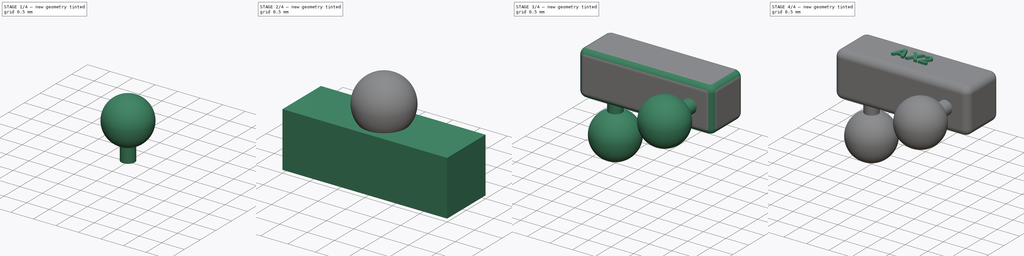
[diagram: build sequence overview — one tinted view per stage of 4, left to right]
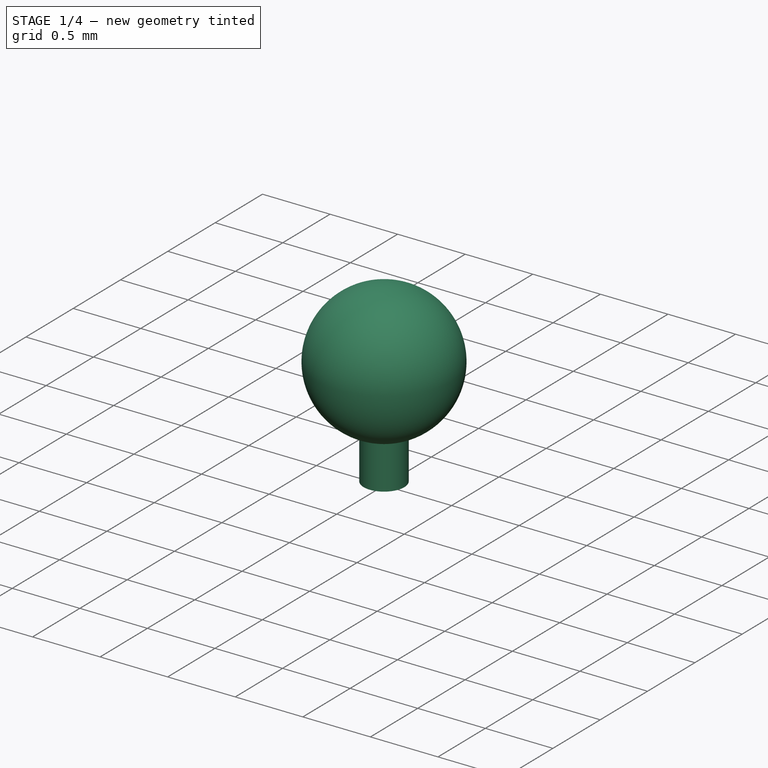
[diagram: stage 1 of 4 — iso view after this stage's code; geometry added in this stage tinted green]
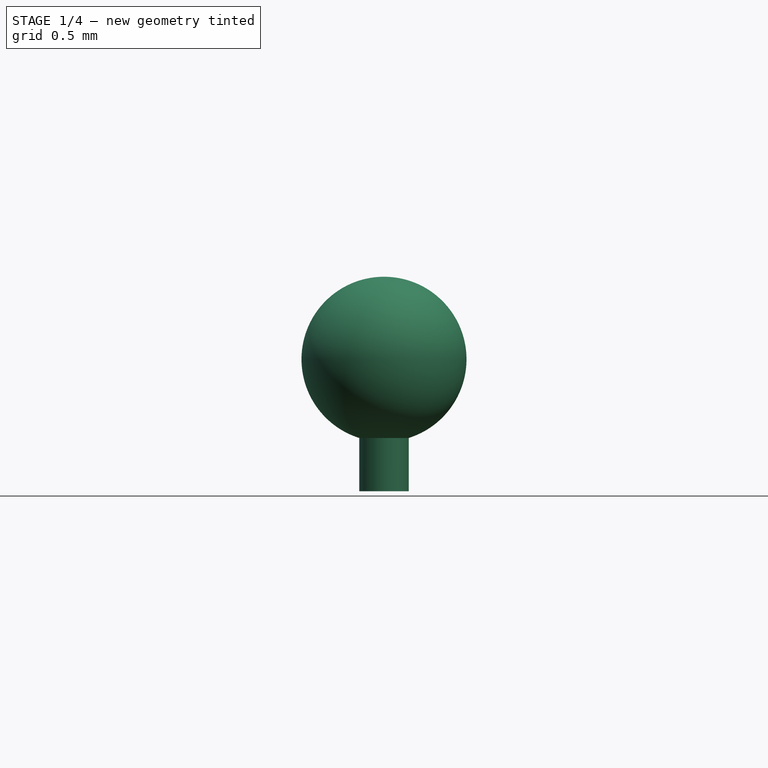
[diagram: stage 1 of 4 — front view after this stage's code; geometry added in this stage tinted green]
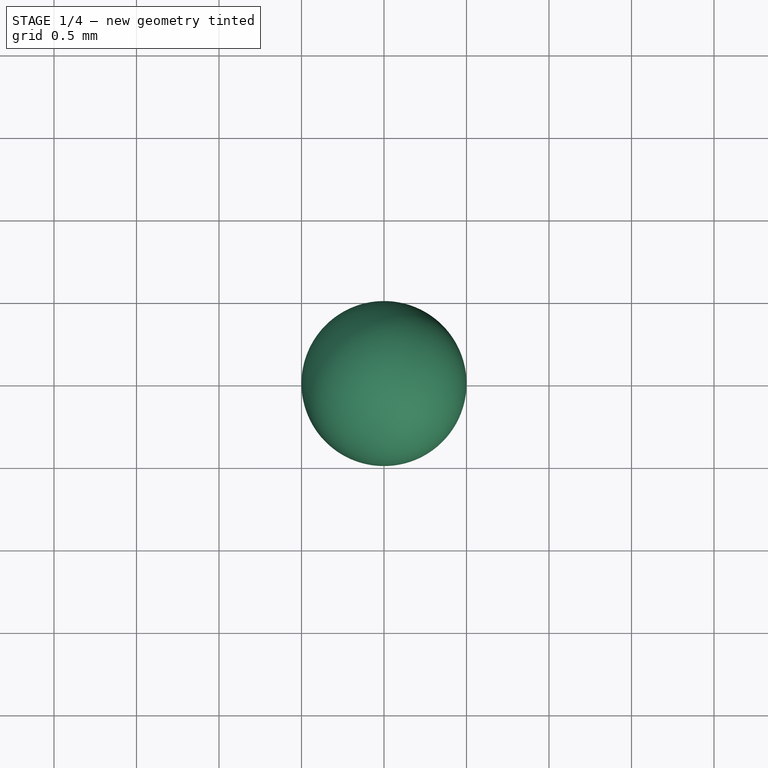
[diagram: stage 1 of 4 — top view after this stage's code; geometry added in this stage tinted green]
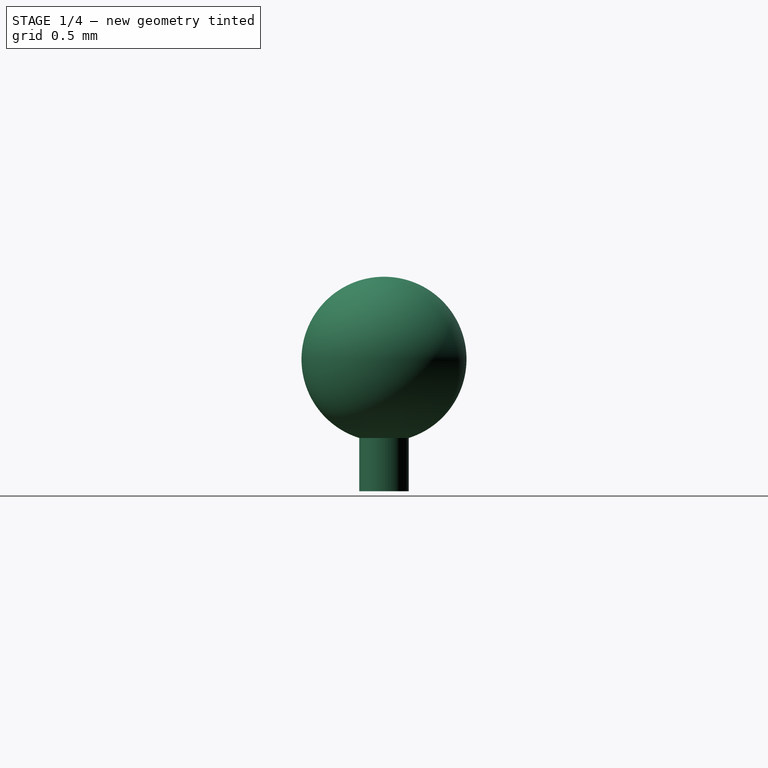
[diagram: stage 1 of 4 — right view after this stage's code; geometry added in this stage tinted green]
FCSTD DOCUMENT  (FreeCAD 0.20R29177 (Git))
Label: ax2
License: All rights reserved
LicenseURL: http://en.wikipedia.org/wiki/All_rights_reserved
objects: PartDesign::Body×4, Sketcher::SketchObject×3, PartDesign::Pad×3, PartDesign::Fillet×2, PartDesign::FeatureBase×2, Spreadsheet::Sheet×1, PartDesign::Plane×1, PartDesign::Line×1, PartDesign::Revolution×1, Part::MultiFuse×1, Part::Part2DObjectPython×1, PartDesign::Point×1
note: 26 computed .brp shape members not serialized (recipe doc carries the construction recipe); baked Part::Feature solids carry a one-line shape summary decoded from their .brp

FEATURE [PartDesign::Body] Body  label="BeamBody"
  Group = -> [Sketch,Pad,Fillet]
  Origin = -> Origin
  Tip = -> Fillet
FEATURE [Sketcher::SketchObject] Sketch001  label="ConnSketch"
  FullyConstrained = true
  MapMode = 5
  Support = -> [XY_Plane001]
  expr: Constraints[1] = Spreadsheet.ConnDiameter
  sketch-geometry (1):
    g0: Circle CenterX=0 CenterY=0 CenterZ=0 NormalX=0 NormalY=0 NormalZ=1 AngleXU=0 Radius=0.15
  constraints (2):
    c: Coincident(g0,g-1)
    c: Diameter(g0) = 0.3
FEATURE [PartDesign::Pad] Pad001  label="ConnPad"
  Direction = (0,0,1)
  Length = 0.8
  Length2 = 10
  Profile = -> Sketch001
  ReferenceAxis = -> Sketch001 [N_Axis]
  Type = 0
  expr: Length = Spreadsheet.ConnPadLength
FEATURE [PartDesign::Plane] DatumPlane  label="BallDatumPlane"
  AttachmentOffset = pos=(0,0.8,0) rot=(0,0,1;0rad)
  Length = 60
  MapMode = 5
  Placement = pos=(0,-2e-16,0.8) rot=(1,0,0;1.5708rad)
  ResizeMode = 0
  Support = -> [XZ_Plane001]
  Width = 60
  expr: .AttachmentOffset.Base.y = Spreadsheet.BallDatumPlanceZOffset
FEATURE [Sketcher::SketchObject] Sketch002  label="BallSketch"
  FullyConstrained = true
  MapMode = 5
  Placement = pos=(0,-2e-16,0.8) rot=(1,0,0;1.5708rad)
  Support = -> [DatumPlane]
  expr: Constraints[7] = Spreadsheet.BallDiameter
  sketch-geometry (3):
    g0: ArcOfCircle CenterX=-1.2e-15 CenterY=0 CenterZ=0 NormalX=0 NormalY=0 NormalZ=1 AngleXU=0 Radius=0.5 StartAngle=1.5708 EndAngle=4.71239
    g1: LineSegment StartX=-1.2e-15 StartY=0.5 StartZ=0 EndX=-1.2e-15 EndY=0 EndZ=0
    g2: LineSegment StartX=-1.2e-15 StartY=0 StartZ=0 EndX=-1.2e-15 EndY=-0.5 EndZ=0
  constraints (8):
    c: Vertical(g1)
    c: Vertical(g2)
    c: Coincident(g0,g2)
    c: Coincident(g0,g1)
    c: Coincident(g0,g1)
    c: Coincident(g2,g0)
    c: Coincident(g0,g-1)
    c: DistanceY(g0,g0) = 1
FEATURE [PartDesign::Line] DatumLine
  AttacherType = Attacher::AttachEngineLine
  Length = 20
  MapMode = 29
  Placement = pos=(-1.2e-15,-2e-16,0.8) rot=(0,1,0;3.14159rad)
  ResizeMode = 0
  Support = -> [Sketch002]
FEATURE [PartDesign::Revolution] Revolution  label="BallRevolution"
  Angle = 360
  Axis = (0,2e-16,-1)
  Base = (-1.2e-15,-2e-16,0.8)
  BaseFeature = -> Pad001
  Profile = -> Sketch002
  ReferenceAxis = -> DatumLine
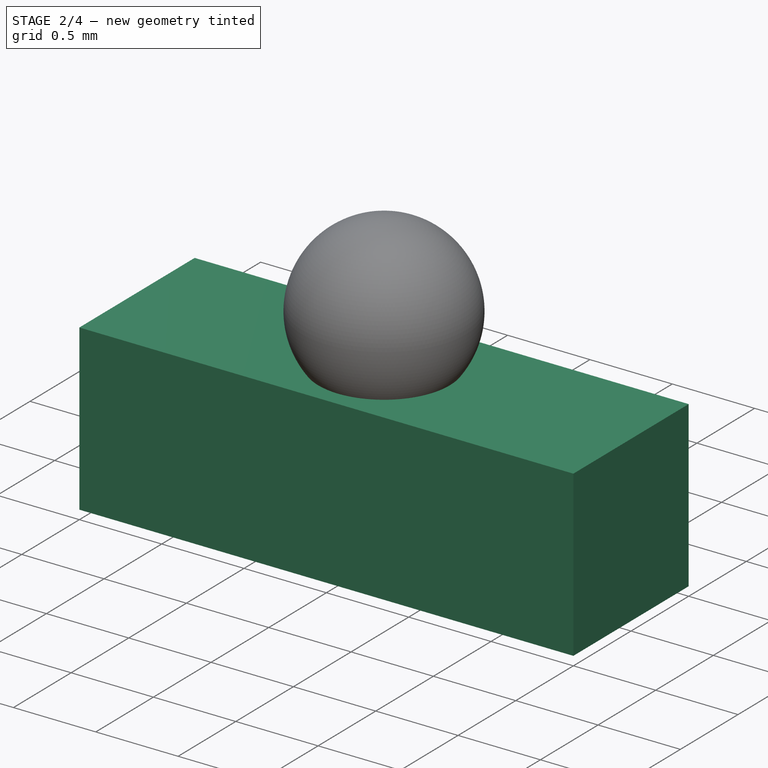
[diagram: stage 2 of 4 — iso view after this stage's code; geometry added in this stage tinted green]
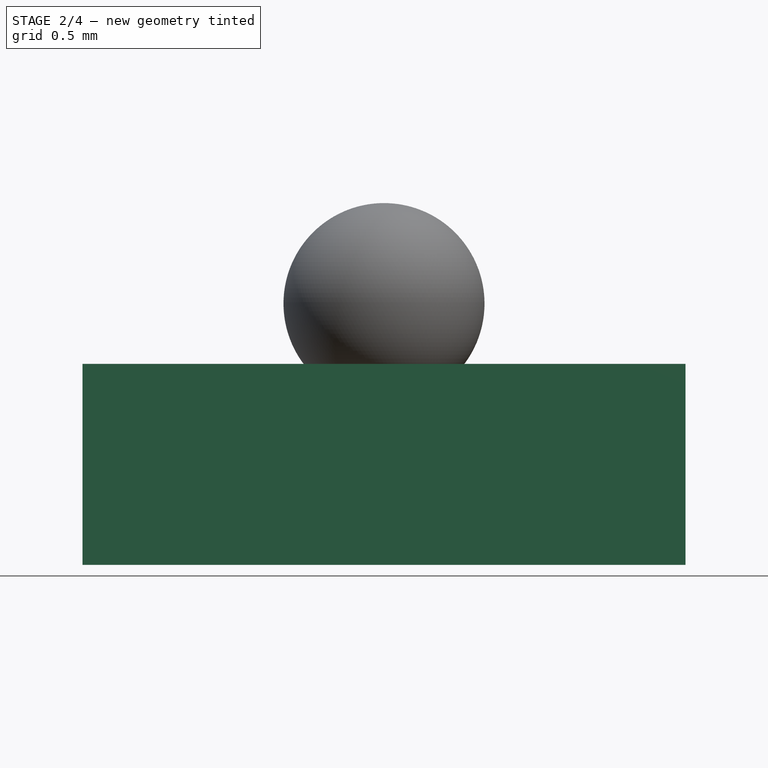
[diagram: stage 2 of 4 — front view after this stage's code; geometry added in this stage tinted green]
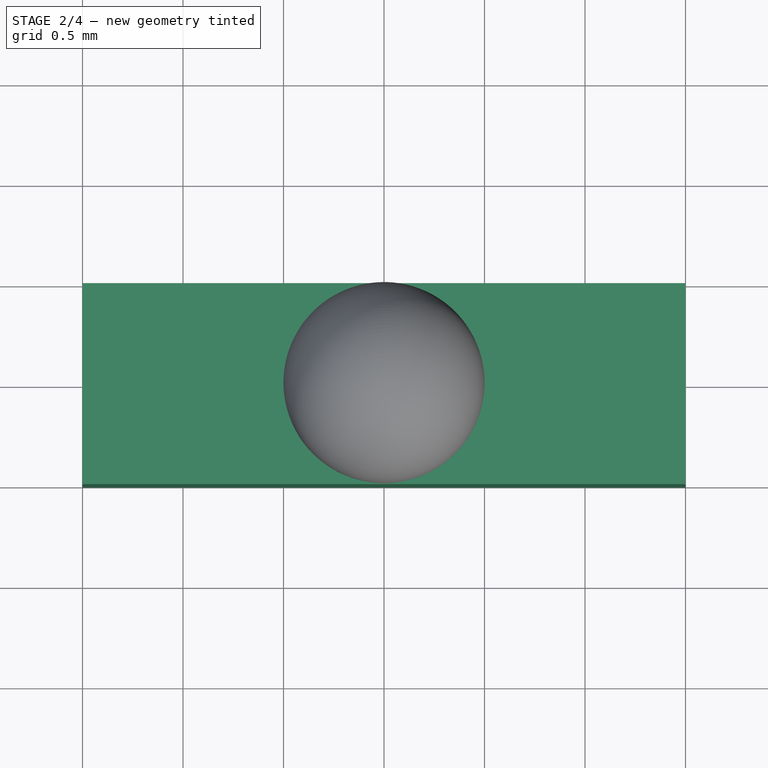
[diagram: stage 2 of 4 — top view after this stage's code; geometry added in this stage tinted green]
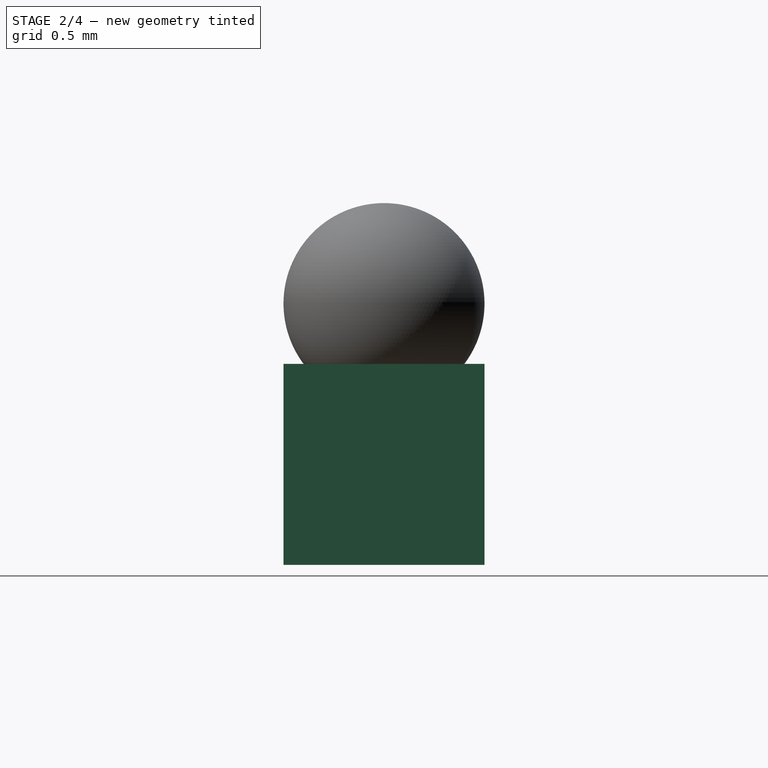
[diagram: stage 2 of 4 — right view after this stage's code; geometry added in this stage tinted green]
FEATURE [Spreadsheet::Sheet] Spreadsheet
  cells = A2=Reference ; A3=RefLength; B3(RefLength)==1mm; A5=Main Beam; A6=Length; B6(Length)==3 * RefLength; A7=Width; B7(Width)==1 * RefLength; A8=Height; B8(Height)==1 * RefLength; A9=EdgeFilletRadius; B9(EdgeFilletRadius)==0.15 * RefLength; A11=BallJoint Common; A12=ConnLength; B12(ConnLength)==0.3 * RefLength; A13=ConnDiameter; B13(ConnDiameter)==0.3 * RefLength; A14=BallDiameter; B14(BallDiameter)==1 * RefLength; A15=BallDatumPlanceZOffset; B15(BallDatumPlanceZOffset)==ConnLength + 0.5 * BallDiameter; A16=ConnPadLength; B16(ConnPadLength)==ConnLength + 0.5 * BallDiameter; A17=ConnFilletRadius; B17(ConnFilletRadius)==0.1 * RefLength; A19=BallJoint 1; A20=BallJoint1XPos; B20(BallJoint1XPos)==-0.5 * Length + 0.5 * BallDiameter; A21=BallJoint1YPos; B21(BallJoint1YPos)==0 * Width; A22=BallJoint1ZPos; B22(BallJoint1ZPos)==Height * -0.5; A24=BallJoint 2; A25=BallJoint2XPos; B25(BallJoint2XPos)==0.5 * Length - 0.5 * BallDiameter; A26=BallJoint2YPos; B26(BallJoint2YPos)==-0.5 * Width; A27=BallJoint2ZPos; B27(BallJoint2ZPos)==0 * Height; A29=Label; A30=LabelString; B30(LabelString)=AX2; A31=LabelSize; B31(LabelSize)==0.15 * RefLength; A32=LabelXPos; B32(LabelXPos)==-0.5 * RefLength; A33=LabelYPos; B33(LabelYPos)==-0.1 * RefLength; A34=LabelPadHeight; B34(LabelPadHeight)==0.05 * RefLength; A36=Ball 1 Center Point; A37=Ball1CenterX; B37(Ball1CenterX)==BallJoint1XPos; A38=Ball1CenterY; B38(Ball1CenterY)==BallJoint1YPos; A39=Ball1CenterZ; B39(Ball1CenterZ)==BallJoint1ZPos - ConnLength - 0.5 * BallDiameter
FEATURE [Sketcher::SketchObject] Sketch  label="BeamSketch"
  FullyConstrained = true
  MapMode = 5
  Support = -> [XY_Plane]
  expr: Constraints[10] = Spreadsheet.Width
  expr: Constraints[9] = Spreadsheet.Length
  sketch-geometry (4):
    g0: LineSegment StartX=-1.5 StartY=0.5 StartZ=0 EndX=1.5 EndY=0.5 EndZ=0
    g1: LineSegment StartX=1.5 StartY=0.5 StartZ=0 EndX=1.5 EndY=-0.5 EndZ=0
    g2: LineSegment StartX=1.5 StartY=-0.5 StartZ=0 EndX=-1.5 EndY=-0.5 EndZ=0
    g3: LineSegment StartX=-1.5 StartY=-0.5 StartZ=0 EndX=-1.5 EndY=0.5 EndZ=0
  constraints (11):
    c: Coincident(g0,g1)
    c: Coincident(g1,g2)
    c: Coincident(g2,g3)
    c: Coincident(g3,g0)
    c: Horizontal(g0)
    c: Horizontal(g2)
    c: Vertical(g1)
    c: Vertical(g3)
    c: Symmetric(g0,g1,g-1)
    c: DistanceX(g0,g0) = 3
    c: DistanceY(g1,g1) = 1
FEATURE [PartDesign::Pad] Pad  label="BeamPad"
  Direction = (0,0,1)
  Length = 1
  Length2 = 10
  Midplane = true
  Profile = -> Sketch
  ReferenceAxis = -> Sketch [N_Axis]
  Type = 0
  expr: Length = Spreadsheet.Height
FEATURE [PartDesign::Body] Body001  label="BallJointBody1"
  Group = -> [Sketch001,Pad001,DatumPlane,Sketch002,DatumLine,Revolution]
  Origin = -> Origin001
  Placement = pos=(-1,0,-0.5) rot=(1,0,0;3.14159rad)
  Tip = -> Revolution
  expr: .Placement.Base.x = Spreadsheet.BallJoint1XPos
  expr: .Placement.Base.z = Spreadsheet.BallJoint1ZPos
FEATURE [PartDesign::FeatureBase] Clone
  BaseFeature = -> Body001
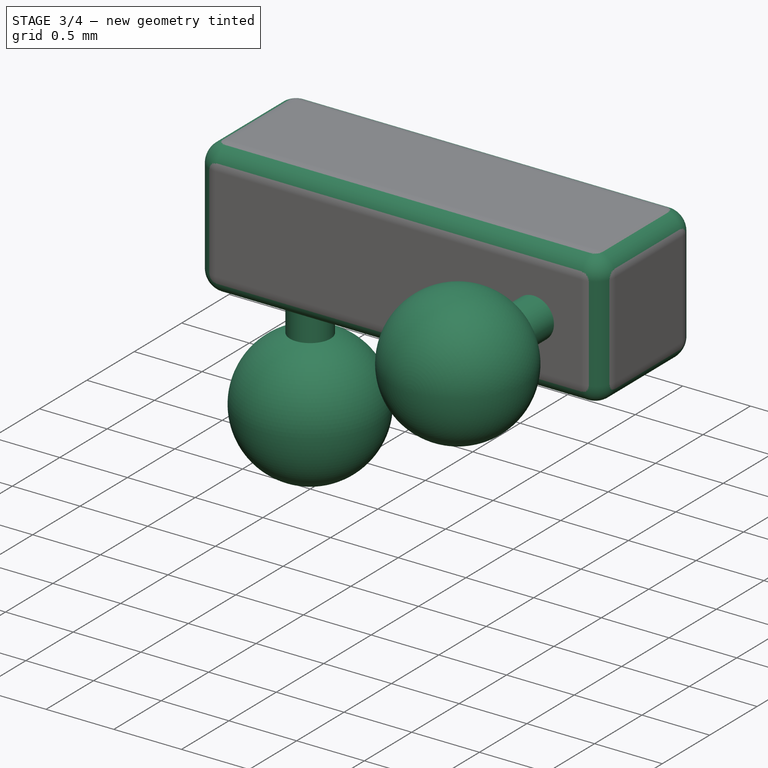
[diagram: stage 3 of 4 — iso view after this stage's code; geometry added in this stage tinted green]
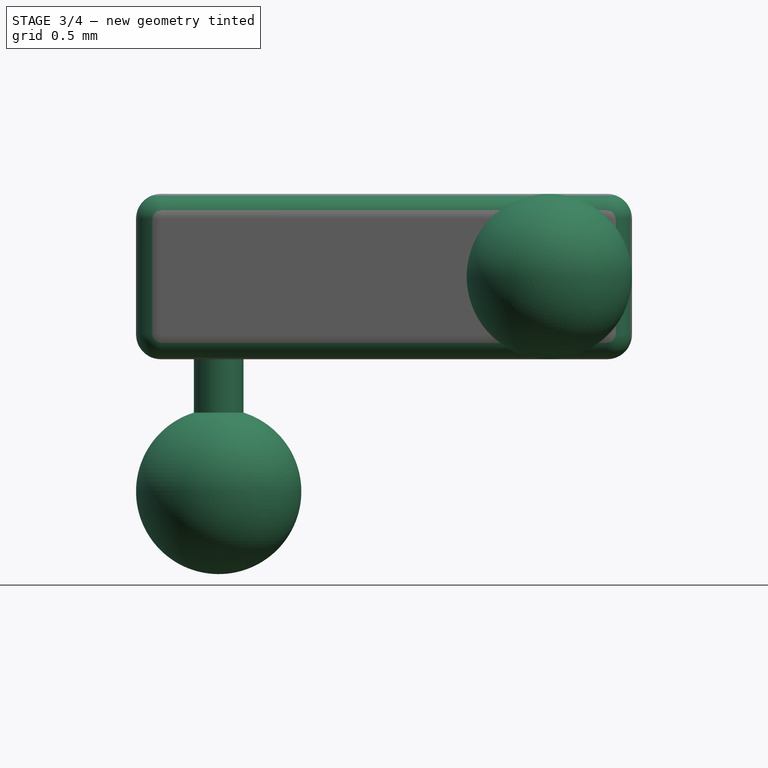
[diagram: stage 3 of 4 — front view after this stage's code; geometry added in this stage tinted green]
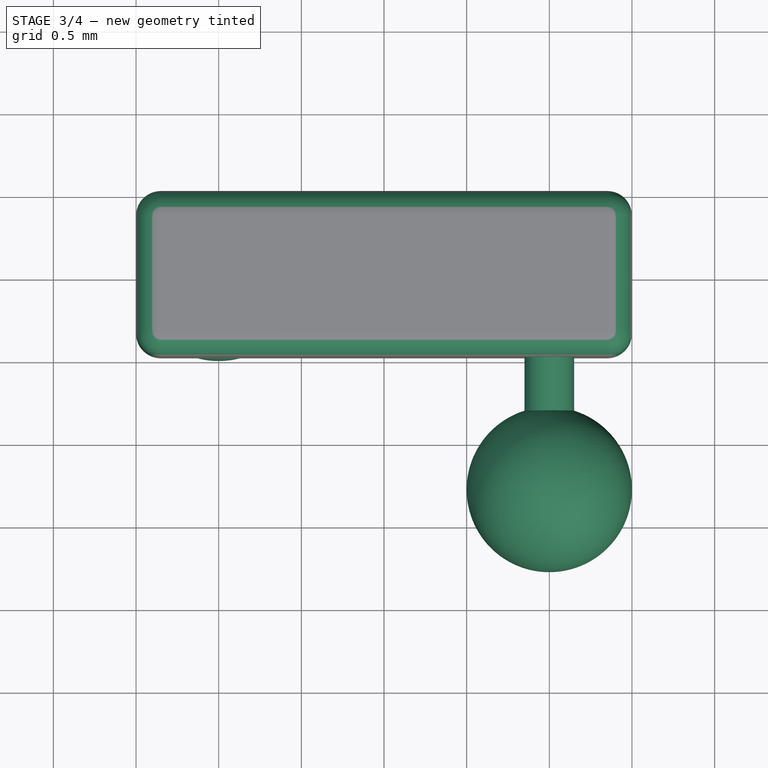
[diagram: stage 3 of 4 — top view after this stage's code; geometry added in this stage tinted green]
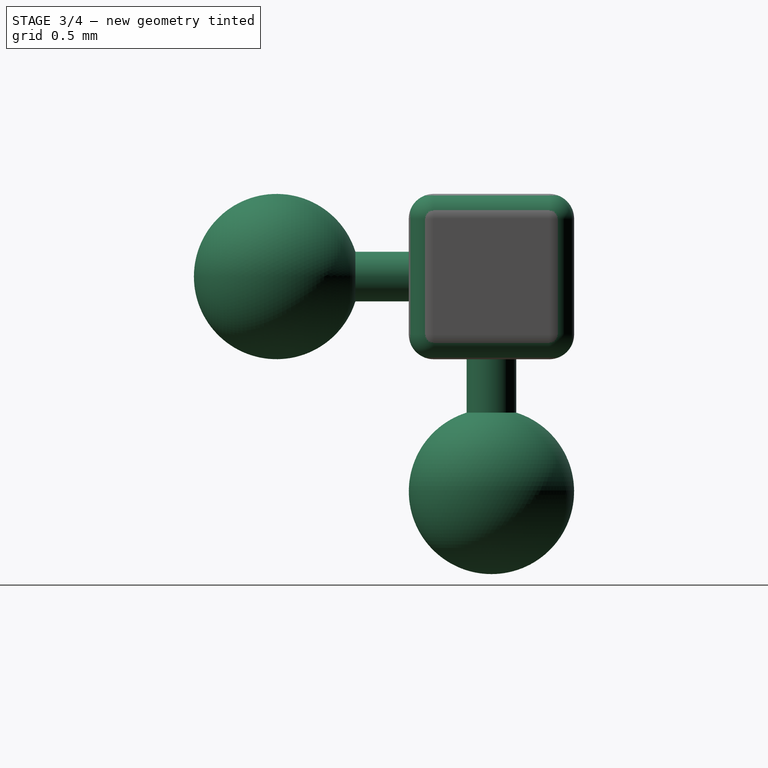
[diagram: stage 3 of 4 — right view after this stage's code; geometry added in this stage tinted green]
FEATURE [PartDesign::Fillet] Fillet
  Base = -> Pad [Edge10]
  BaseFeature = -> Pad
  Radius = 0.15
  SupportTransform = false
  UseAllEdges = true
  expr: Radius = Spreadsheet.EdgeFilletRadius
FEATURE [PartDesign::Body] Body002  label="BallJointBody2"
  BaseFeature = -> Body001
  Group = -> [Clone]
  Origin = -> Origin002
  Placement = pos=(1,-0.5,0) rot=(1,0,0;1.5708rad)
  Tip = -> Clone
  expr: .Placement.Base.x = Spreadsheet.BallJoint2XPos
  expr: .Placement.Base.y = Spreadsheet.BallJoint2YPos
  expr: .Placement.Base.z = Spreadsheet.BallJoint2ZPos
FEATURE [Part::MultiFuse] Fusion  label="BeamAndBallJointFusion"
  Shapes = -> [Body,Body001,Body002]
FEATURE [PartDesign::FeatureBase] BaseFeature
  BaseFeature = -> Fusion
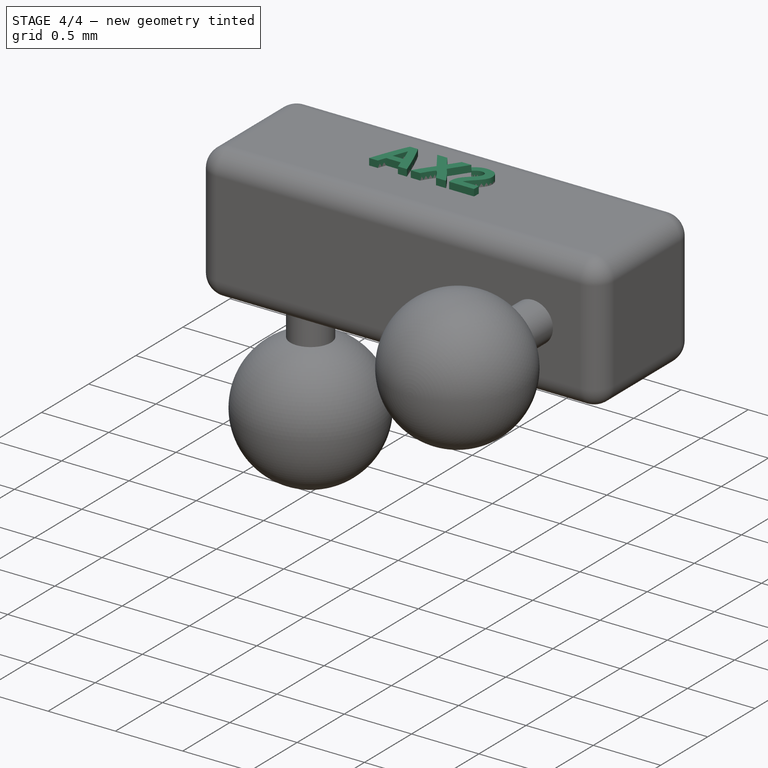
[diagram: stage 4 of 4 — iso view after this stage's code; geometry added in this stage tinted green]
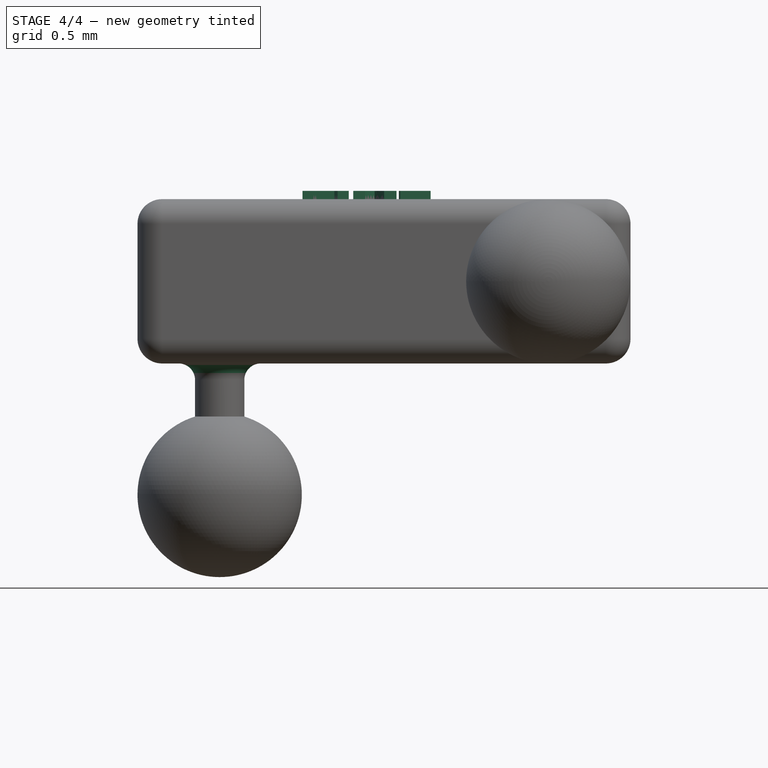
[diagram: stage 4 of 4 — front view after this stage's code; geometry added in this stage tinted green]
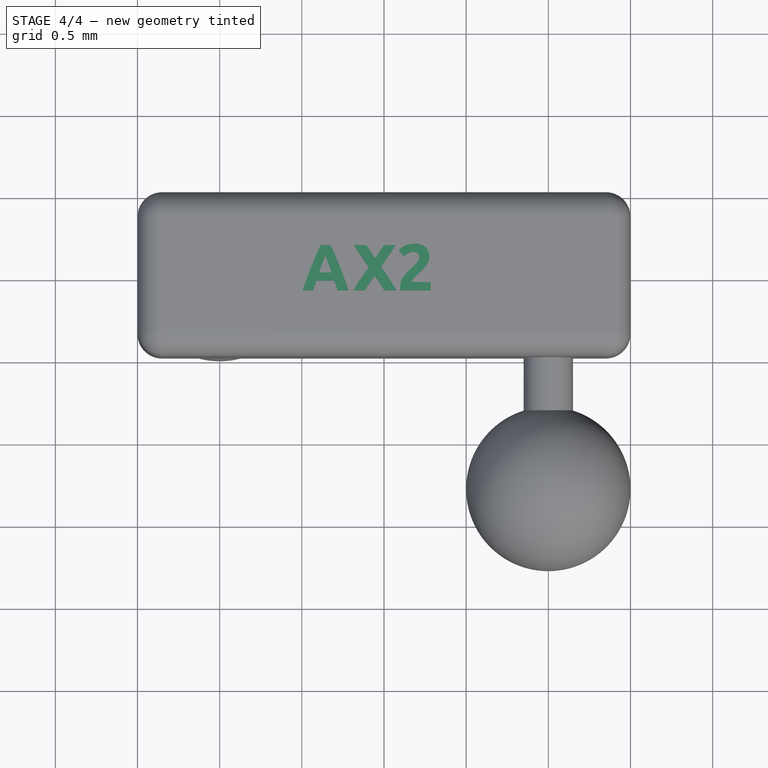
[diagram: stage 4 of 4 — top view after this stage's code; geometry added in this stage tinted green]
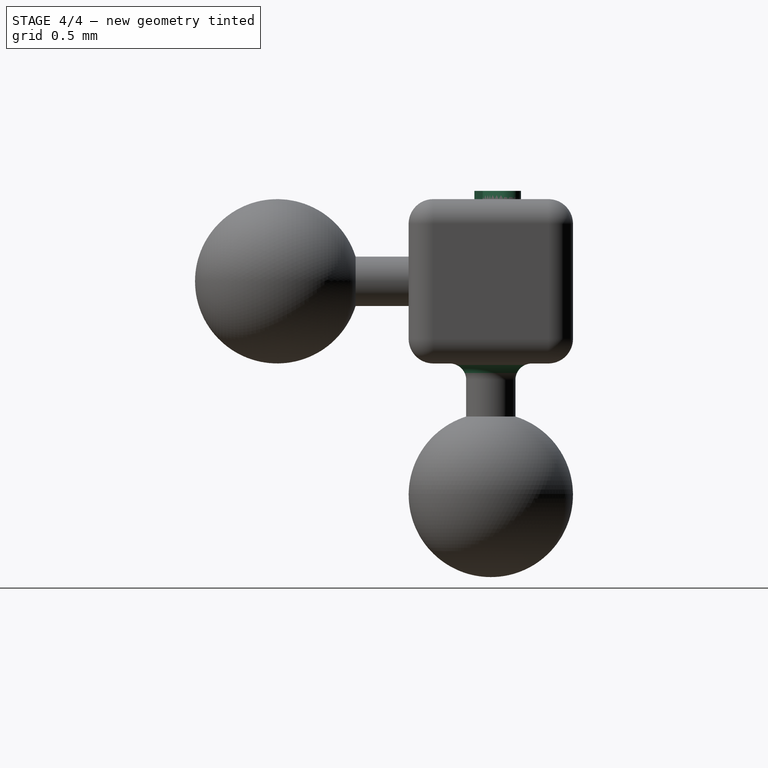
[diagram: stage 4 of 4 — right view after this stage's code; geometry added in this stage tinted green]
FEATURE [PartDesign::Fillet] Fillet001  label="ConnFillet"
  Base = -> BaseFeature [Edge38,Edge27]
  BaseFeature = -> BaseFeature
  Radius = 0.1
  SupportTransform = false
  UseAllEdges = false
  expr: Radius = Spreadsheet.ConnFilletRadius
FEATURE [Part::Part2DObjectPython] ShapeString  label="LabelShapeString"  # Draft 2D object (typed FeaturePython)
  FontFile = <userpath>/work/cad/wing_hinge_cad_models/rev2/font/Ubuntu-B.ttf
  MakeFace = true
  Placement = pos=(-0.5,-0.1,0.5) rot=(0,0,1;0rad)
  Size = 0.15
  String = AX2
  Tracking = 0
  expr: .Placement.Base.x = Spreadsheet.LabelXPos
  expr: .Placement.Base.y = Spreadsheet.LabelYPos
  expr: Size = Spreadsheet.LabelSize
  expr: String = Spreadsheet.LabelString
FEATURE [PartDesign::Pad] Pad002  label="LabelPad"
  BaseFeature = -> Fillet001
  Direction = (0,0,1)
  Length = 0.05
  Length2 = 10
  Profile = -> ShapeString
  ReferenceAxis = -> ShapeString [N_Axis]
  Type = 0
  expr: Length = Spreadsheet.LabelPadHeight
FEATURE [PartDesign::Point] DatumPoint
  AttacherType = Attacher::AttachEnginePoint
  AttachmentOffset = pos=(-1,0,-1.3) rot=(0,0,1;0rad)
  MapMode = 32
  Placement = pos=(-1,0,-1.3) rot=(0,0,1;0rad)
  Support = -> [Pad002]
  expr: .AttachmentOffset.Base.x = Spreadsheet.Ball1CenterX
  expr: .AttachmentOffset.Base.y = Spreadsheet.Ball1CenterY
  expr: .AttachmentOffset.Base.z = Spreadsheet.Ball1CenterZ
FEATURE [PartDesign::Body] Body003  label="AX2Body"
  BaseFeature = -> Fusion
  Group = -> [BaseFeature,Fillet001,ShapeString,Pad002,DatumPoint]
  Origin = -> Origin003
  Tip = -> Pad002
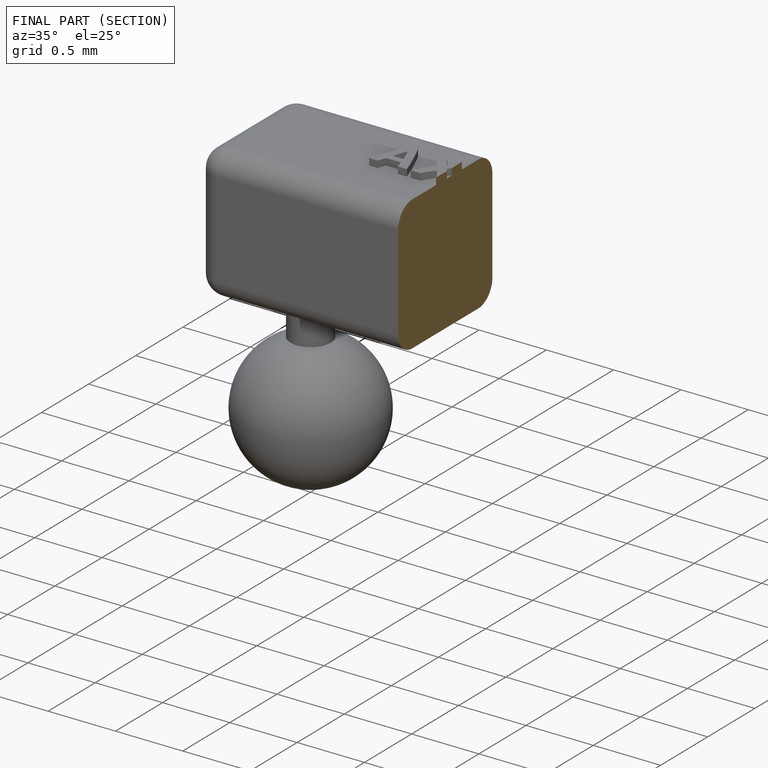
[diagram: finished part — half-section view (interior)]
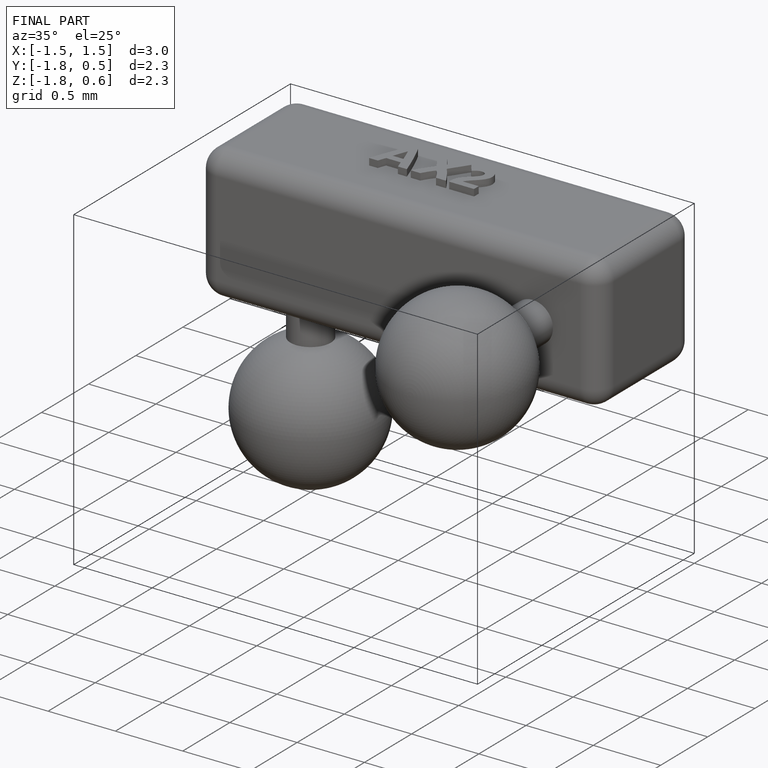
[diagram: finished part — iso view with bounding-box wireframe]
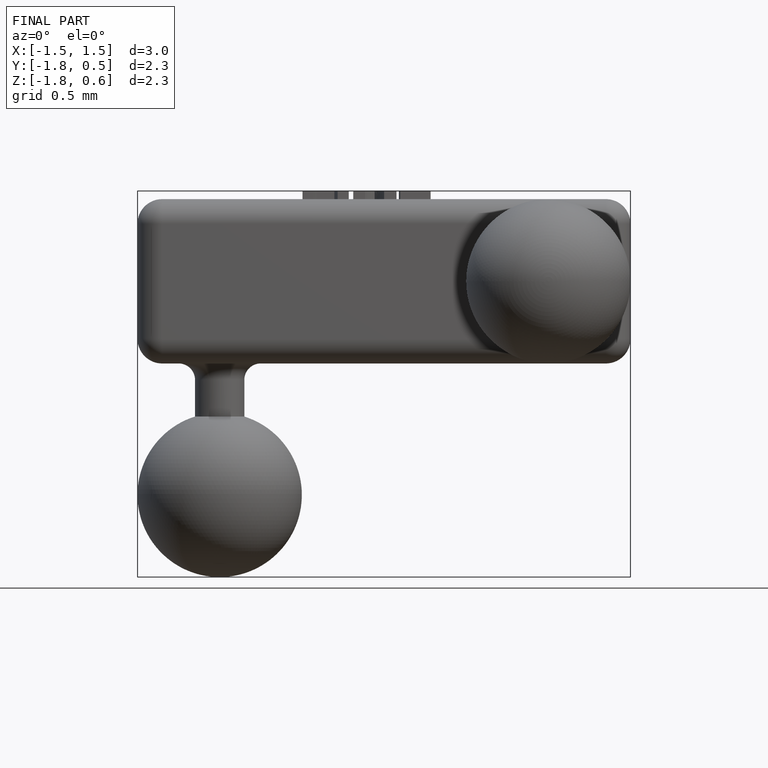
[diagram: finished part — front view with bounding-box wireframe]
